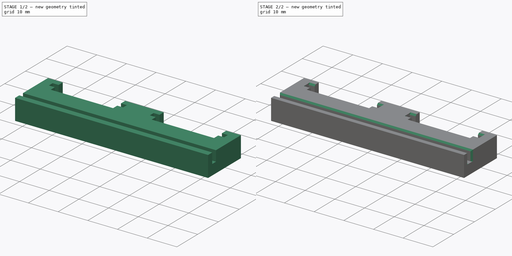
[diagram: build sequence overview — one tinted view per stage of 2, left to right]
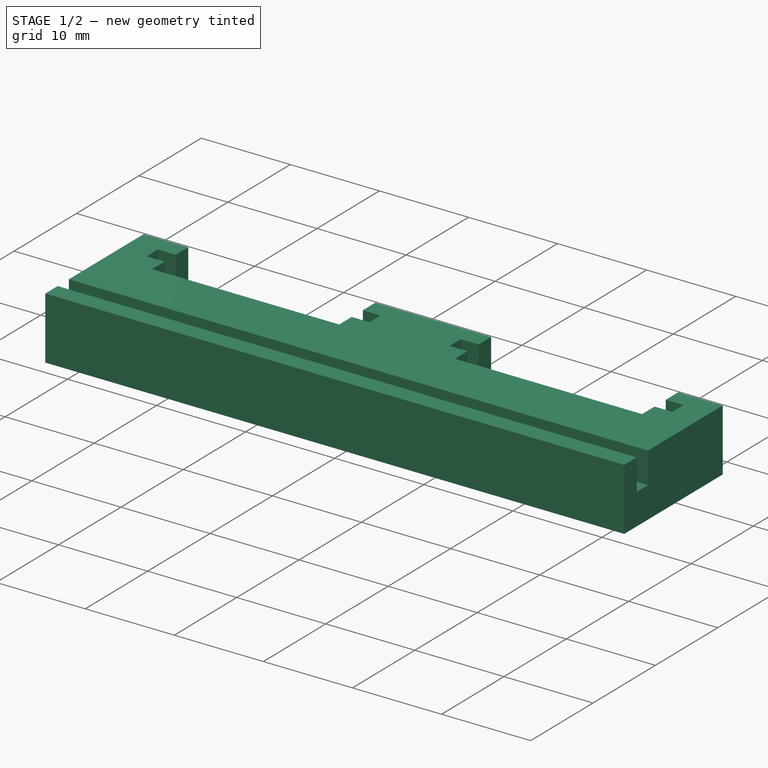
[diagram: stage 1 of 2 — iso view after this stage's code; geometry added in this stage tinted green]
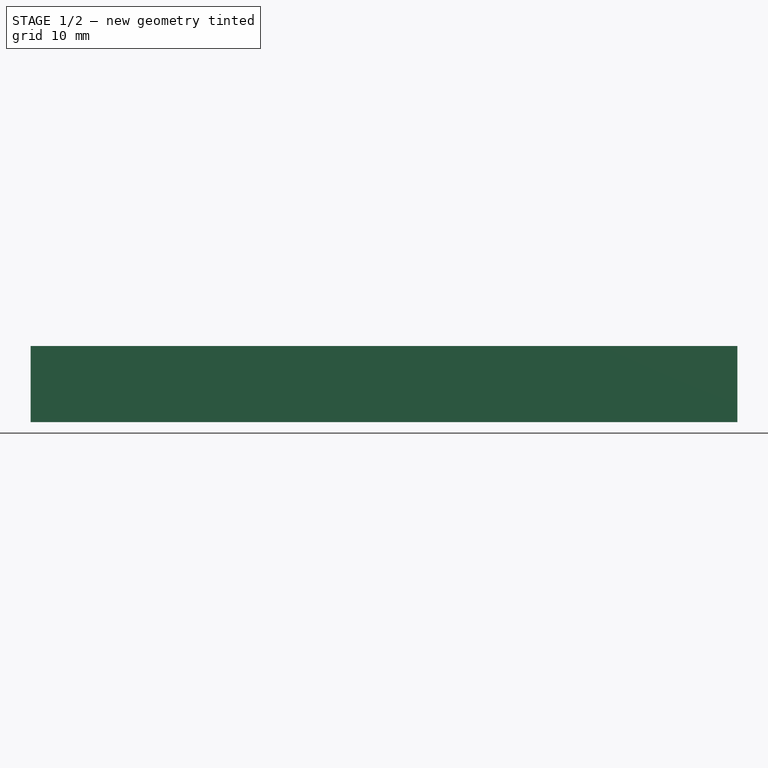
[diagram: stage 1 of 2 — front view after this stage's code; geometry added in this stage tinted green]
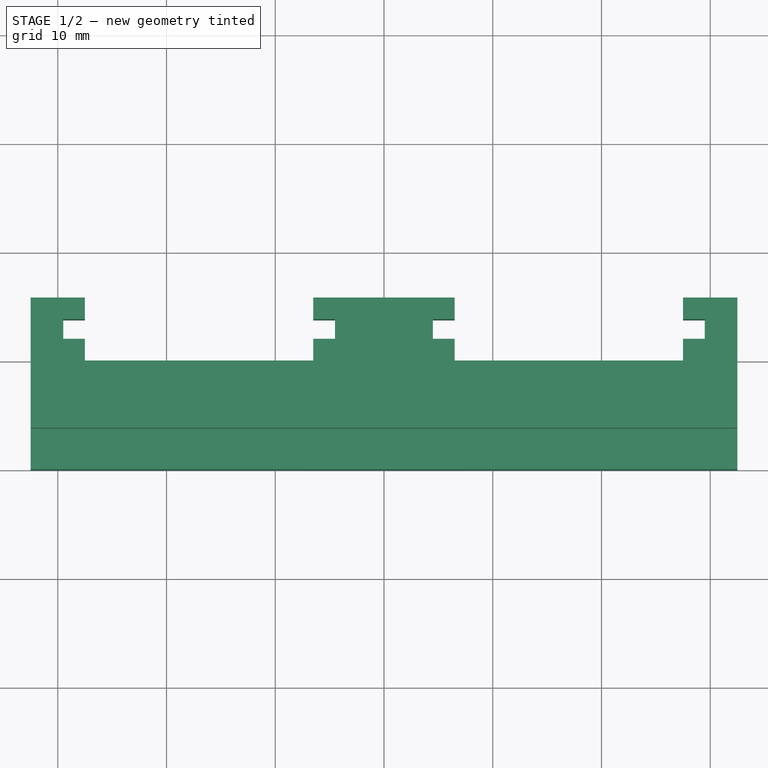
[diagram: stage 1 of 2 — top view after this stage's code; geometry added in this stage tinted green]
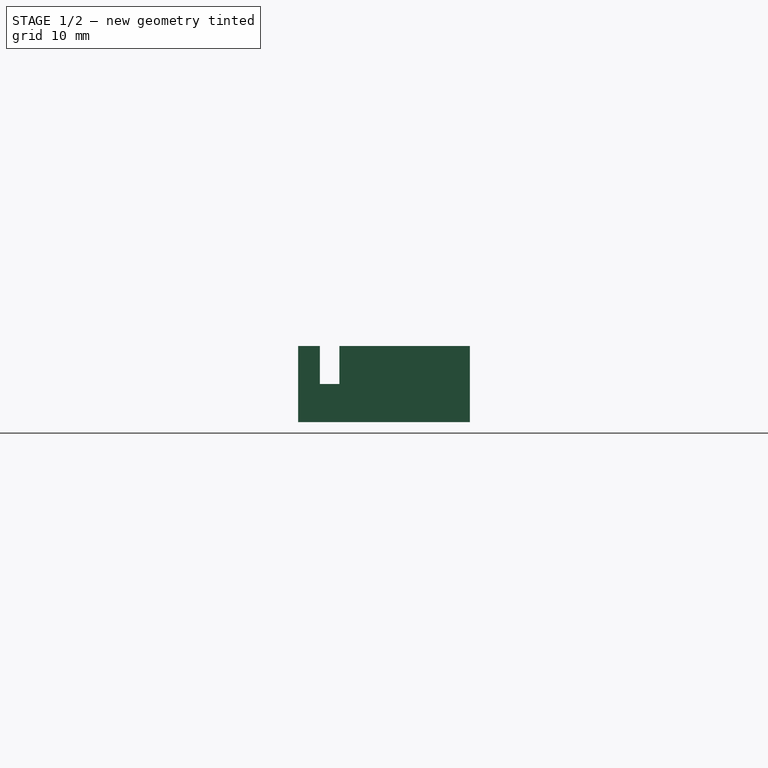
[diagram: stage 1 of 2 — right view after this stage's code; geometry added in this stage tinted green]
FCSTD DOCUMENT  (FreeCAD 0.19R24291 (Git))
Label: 20211204-gigatron-dual-sd-v2
License: All rights reserved
LicenseURL: http://en.wikipedia.org/wiki/All_rights_reserved
objects: Sketcher::SketchObject×2, PartDesign::Chamfer×2, PartDesign::Pad×1, PartDesign::Pocket×1, Spreadsheet::Sheet×1, PartDesign::Body×1
note: 11 computed .brp shape members not serialized (recipe doc carries the construction recipe); baked Part::Feature solids carry a one-line shape summary decoded from their .brp

FEATURE [Sketcher::SketchObject] Sketch
  FullyConstrained = true
  MapMode = 5
  Support = -> [XY_Plane]
  expr: Constraints[80] = Spreadsheet.sd_slot + Spreadsheet.edge
  expr: Constraints[66] = Spreadsheet.up_thick
  expr: Constraints[82] = Spreadsheet.bottom_edge + Spreadsheet.sd_distance
  expr: Constraints[68] = Spreadsheet.down_thick
  expr: Constraints[67] = Spreadsheet.pcb + 2 * Spreadsheet.vspace
  expr: Constraints[75] = Spreadsheet.sd_slot
  expr: Constraints[78] = Spreadsheet.sd_wide + 2 * Spreadsheet.hspace
  expr: Constraints[77] = Spreadsheet.sd_wide + 2 * Spreadsheet.hspace
  expr: Constraints[76] = Spreadsheet.sd_distance - 2 * Spreadsheet.hspace
  sketch-geometry (28):
    g0: LineSegment StartX=-32.5 StartY=0 StartZ=0 EndX=-32.5 EndY=15.8 EndZ=0
    g1: LineSegment StartX=-32.5 StartY=15.8 StartZ=0 EndX=-27.5 EndY=15.8 EndZ=0
    g2: LineSegment StartX=-27.5 StartY=15.8 StartZ=0 EndX=-27.5 EndY=13.8 EndZ=0
    g3: LineSegment StartX=-27.5 StartY=13.8 StartZ=0 EndX=-29.5 EndY=13.8 EndZ=0
    g4: LineSegment StartX=-29.5 StartY=13.8 StartZ=0 EndX=-29.5 EndY=12 EndZ=0
    g5: LineSegment StartX=-29.5 StartY=12 StartZ=0 EndX=-27.5 EndY=12 EndZ=0
    g6: LineSegment StartX=-27.5 StartY=12 StartZ=0 EndX=-27.5 EndY=10 EndZ=0
    g7: LineSegment StartX=-27.5 StartY=10 StartZ=0 EndX=-6.5 EndY=10 EndZ=0
    g8: LineSegment StartX=-6.5 StartY=10 StartZ=0 EndX=-6.5 EndY=12 EndZ=0
    g9: LineSegment StartX=-6.5 StartY=12 StartZ=0 EndX=-4.5 EndY=12 EndZ=0
    g10: LineSegment StartX=-4.5 StartY=12 StartZ=0 EndX=-4.5 EndY=13.8 EndZ=0
    g11: LineSegment StartX=-4.5 StartY=13.8 StartZ=0 EndX=-6.5 EndY=13.8 EndZ=0
    g12: LineSegment StartX=-6.5 StartY=13.8 StartZ=0 EndX=-6.5 EndY=15.8 EndZ=0
    g13: LineSegment StartX=-6.5 StartY=15.8 StartZ=0 EndX=6.5 EndY=15.8 EndZ=0
    g14: LineSegment StartX=6.5 StartY=15.8 StartZ=0 EndX=6.5 EndY=13.8 EndZ=0
    g15: LineSegment StartX=6.5 StartY=13.8 StartZ=0 EndX=4.5 EndY=13.8 EndZ=0
    g16: LineSegment StartX=4.5 StartY=13.8 StartZ=0 EndX=4.5 EndY=12 EndZ=0
    g17: LineSegment StartX=4.5 StartY=12 StartZ=0 EndX=6.5 EndY=12 EndZ=0
    g18: LineSegment StartX=6.5 StartY=12 StartZ=0 EndX=6.5 EndY=10 EndZ=0
    g19: LineSegment StartX=6.5 StartY=10 StartZ=0 EndX=27.5 EndY=10 EndZ=0
    g20: LineSegment StartX=27.5 StartY=10 StartZ=0 EndX=27.5 EndY=12 EndZ=0
    g21: LineSegment StartX=27.5 StartY=12 StartZ=0 EndX=29.5 EndY=12 EndZ=0
    g22: LineSegment StartX=29.5 StartY=12 StartZ=0 EndX=29.5 EndY=13.8 EndZ=0
    g23: LineSegment StartX=29.5 StartY=13.8 StartZ=0 EndX=27.5 EndY=13.8 EndZ=0
    g24: LineSegment StartX=27.5 StartY=13.8 StartZ=0 EndX=27.5 EndY=15.8 EndZ=0
    g25: LineSegment StartX=27.5 StartY=15.8 StartZ=0 EndX=32.5 EndY=15.8 EndZ=0
    g26: LineSegment StartX=32.5 StartY=15.8 StartZ=0 EndX=32.5 EndY=6.7608e-12 EndZ=0
    g27: LineSegment StartX=32.5 StartY=6.7608e-12 StartZ=0 EndX=-32.5 EndY=0 EndZ=0
  constraints (83):
    c: PointOnObject(g0,g-1)
    c: Vertical(g0)
    c: Coincident(g0,g1)
    c: Horizontal(g1)
    c: Coincident(g1,g2)
    c: Vertical(g2)
    c: Coincident(g2,g3)
    c: Horizontal(g3)
    c: Coincident(g3,g4)
    c: Coincident(g4,g5)
    c: Coincident(g5,g6)
    c: Vertical(g6)
    c: Coincident(g6,g7)
    c: Horizontal(g7)
    c: Coincident(g7,g8)
    c: Coincident(g8,g9)
    c: Coincident(g9,g10)
    c: Coincident(g10,g11)
    c: Coincident(g11,g12)
    c: Coincident(g12,g13)
    c: Horizontal(g13)
    c: Coincident(g13,g14)
    c: Coincident(g14,g15)
    c: Coincident(g15,g16)
    c: Coincident(g16,g17)
    c: Coincident(g17,g18)
    c: Coincident(g18,g19)
    c: Horizontal(g19)
    c: Coincident(g19,g20)
    c: Vertical(g20)
    c: Coincident(g20,g21)
    c: Coincident(g21,g22)
    c: Vertical(g22)
    c: Coincident(g22,g23)
    c: Coincident(g23,g24)
    c: Coincident(g24,g25)
    c: Horizontal(g25)
    c: Coincident(g25,g26)
    c: Vertical(g26)
    c: Coincident(g26,g27)
    c: Coincident(g27,g0)
    c: Horizontal(g5)
    c: Horizontal(g11)
    c: Horizontal(g9)
    c: Horizontal(g17)
    c: Horizontal(g15)
    c: Horizontal(g21)
    c: Horizontal(g23)
    c: Vertical(g4)
    c: Vertical(g10)
    c: Vertical(g12)
    c: Vertical(g8)
    c: Vertical(g24)
    c: Vertical(g14)
    c: Vertical(g18)
    c: Vertical(g16)
    c: Equal(g3,g5)
    c: Equal(g5,g11)
    c: Equal(g11,g9)
    c: Equal(g9,g15)
    c: Equal(g15,g17)
    c: Equal(g17,g23)
    c: Equal(g21,g23)
    c: Equal(g2,g12)
    c: Equal(g12,g14)
    c: Equal(g14,g24)
    c: DistanceY(g24,g24) = 2
    c: DistanceY(g22,g22) = 1.8
    c: DistanceY(g20,g20) = 2
    c: Equal(g18,g8)
    c: Equal(g20,g18)
    c: Equal(g8,g6)
    c: Equal(g22,g16)
    c: Equal(g16,g10)
    c: Equal(g10,g4)
    c: DistanceX(g15,g15) = 2
    c: DistanceX(g10,g15) = 9
    c: DistanceX(g3,g10) = 25
    c: DistanceX(g16,g21) = 25
    c: Equal(g1,g25)
    c: DistanceX(g1,g1) = 5
    c: Symmetric(g0,g26,g-1)
    c: DistanceY(g0,g4) = 12
FEATURE [PartDesign::Pad] Pad
  Direction = (1,1,1)
  Length = 7
  Length2 = 100
  Profile = -> Sketch
  Type = 0
FEATURE [Sketcher::SketchObject] Sketch001
  AttachmentOffset = pos=(0,0,7) rot=(0,0,1;0rad)
  FullyConstrained = true
  MapMode = 5
  Placement = pos=(0,0,7) rot=(0,0,1;0rad)
  Support = -> [XY_Plane]
  expr: Constraints[10] = 2 * (Spreadsheet.sd_wide + 2 * Spreadsheet.hspace + Spreadsheet.edge) + Spreadsheet.sd_distance - 2 * Spreadsheet.hspace
  expr: Constraints[8] = Spreadsheet.bottom_edge
  expr: .AttachmentOffset.Base.z = Spreadsheet.pcbthick + Spreadsheet.backthick
  expr: Constraints[7] = Spreadsheet.pcb + 2 * Spreadsheet.vspace
  sketch-geometry (4):
    g0: LineSegment StartX=-32.5 StartY=3.8 StartZ=0 EndX=32.5 EndY=3.8 EndZ=0
    g1: LineSegment StartX=32.5 StartY=3.8 StartZ=0 EndX=32.5 EndY=2 EndZ=0
    g2: LineSegment StartX=32.5 StartY=2 StartZ=0 EndX=-32.5 EndY=2 EndZ=0
    g3: LineSegment StartX=-32.5 StartY=2 StartZ=0 EndX=-32.5 EndY=3.8 EndZ=0
  constraints (11):
    c: Coincident(g0,g1)
    c: Coincident(g1,g2)
    c: Coincident(g2,g3)
    c: Coincident(g3,g0)
    c: Horizontal(g0)
    c: Vertical(g1)
    c: Vertical(g3)
    c: DistanceY(g3,g3) = 1.8
    c: DistanceY(g-1,g1) = 2
    c: Symmetric(g2,g1,g-2)
    c: DistanceX(g0,g0) = 65
FEATURE [PartDesign::Pocket] Pocket
  BaseFeature = -> Pad
  Length = 3.5
  Length2 = 100
  Profile = -> Sketch001
  Type = 0
  expr: Length = Spreadsheet.pcbthick
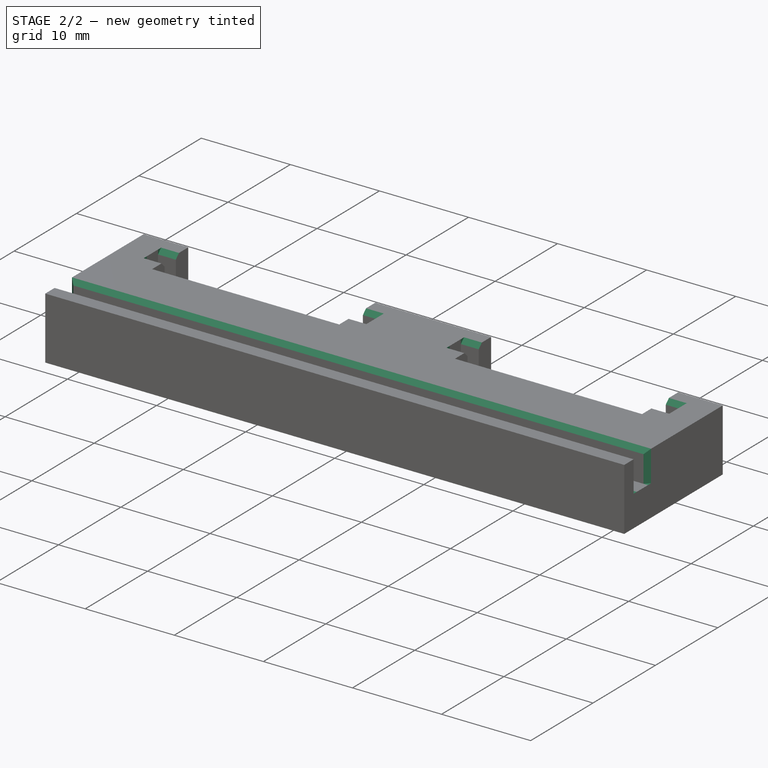
[diagram: stage 2 of 2 — iso view after this stage's code; geometry added in this stage tinted green]
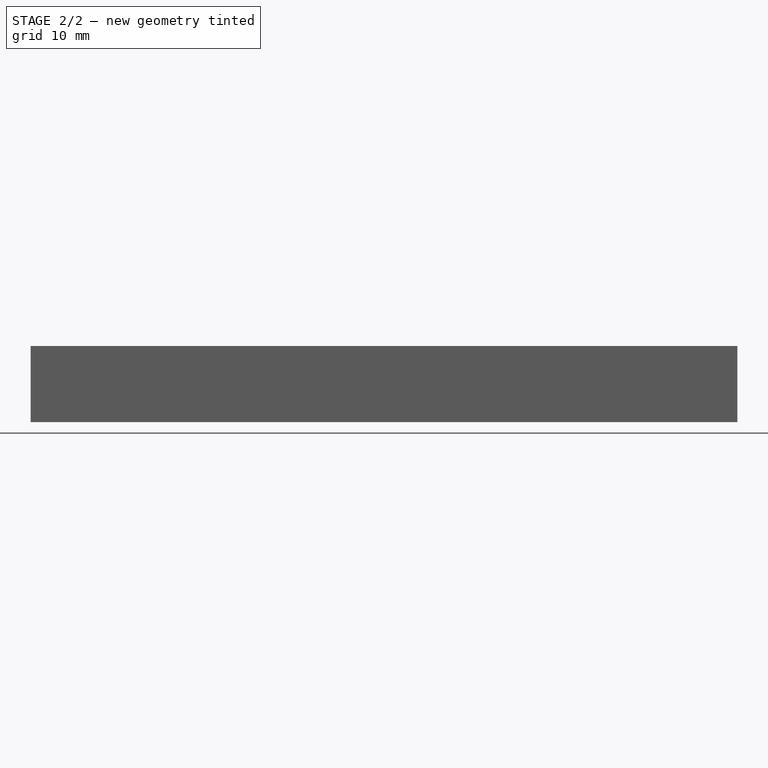
[diagram: stage 2 of 2 — front view after this stage's code; geometry added in this stage tinted green]
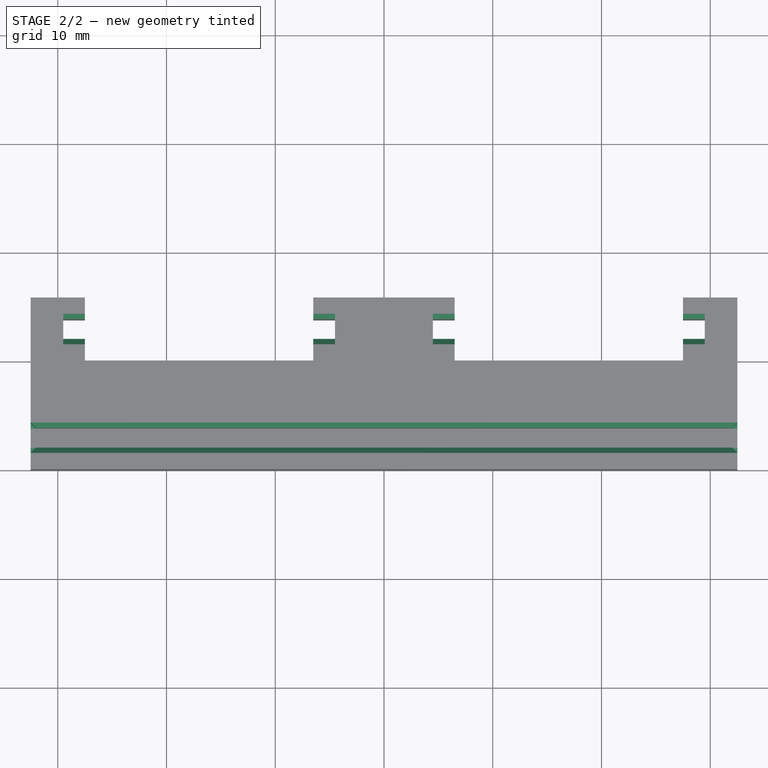
[diagram: stage 2 of 2 — top view after this stage's code; geometry added in this stage tinted green]
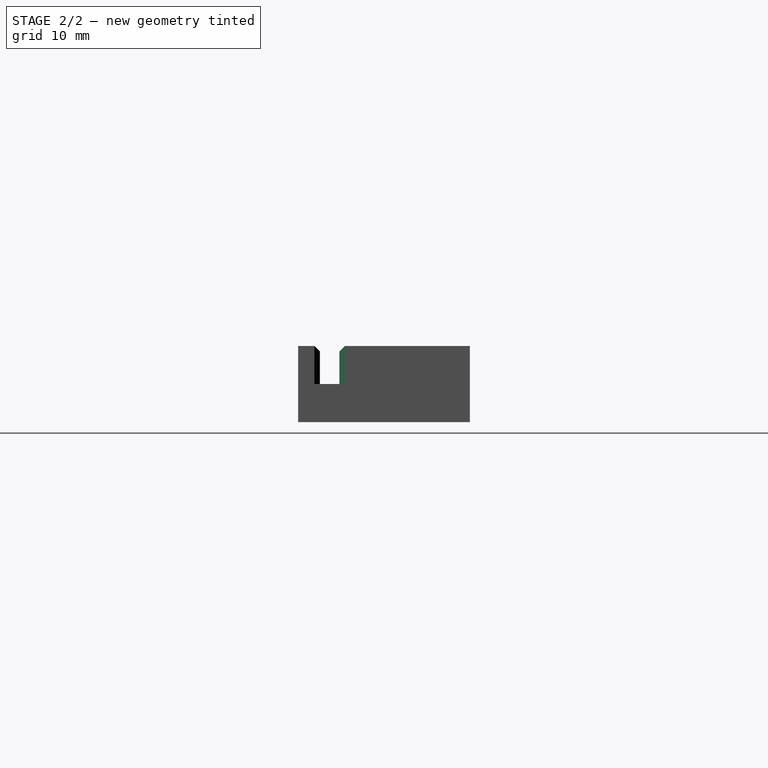
[diagram: stage 2 of 2 — right view after this stage's code; geometry added in this stage tinted green]
FEATURE [Spreadsheet::Sheet] Spreadsheet
  cells = A2=PCB Dicke; B2(pcb)==1.6mm; A3=Freiraum Vertical; B3(vspace)==0.1mm; A4=Distanz SD-Card; B4(distance)==9mm; A5=Freiraum Horizontal; B5(hspace)==0.5mm; A6=Stärke Rückwand; B6(backthick)==3.5mm; A7=Stärke im PCB; B7(pcbthick)==3.5mm; A8=SD-Card Abstand; B8(sd_distance)==10mm; A9=SD-Card Breite; B9(sd_wide)==24mm; A10=Seitenrand; B10(edge)==3mm; B11(sd_slot)==2mm; B12(up_thick)==2mm; B13(down_thick)==2mm; B14(bottom_edge)==2mm
FEATURE [PartDesign::Chamfer] Chamfer
  Angle = 45
  Base = -> Pocket [Edge69,Edge38,Edge6,Edge4,Edge68,Edge64]
  BaseFeature = -> Pocket
  ChamferType = 0
  FlipDirection = false
  Size = 0.5
  Size2 = 1
  SupportTransform = false
FEATURE [PartDesign::Chamfer] Chamfer001
  Angle = 45
  Base = -> Chamfer [Edge23,Edge19,Edge31,Edge35,Edge28,Edge32,Edge20,Edge16]
  BaseFeature = -> Chamfer
  ChamferType = 0
  FlipDirection = false
  Size = 0.5
  Size2 = 1
  SupportTransform = false
FEATURE [PartDesign::Body] Body
  Group = -> [Sketch,Pad,Sketch001,Pocket,Chamfer,Chamfer001]
  Origin = -> Origin
  Tip = -> Chamfer001
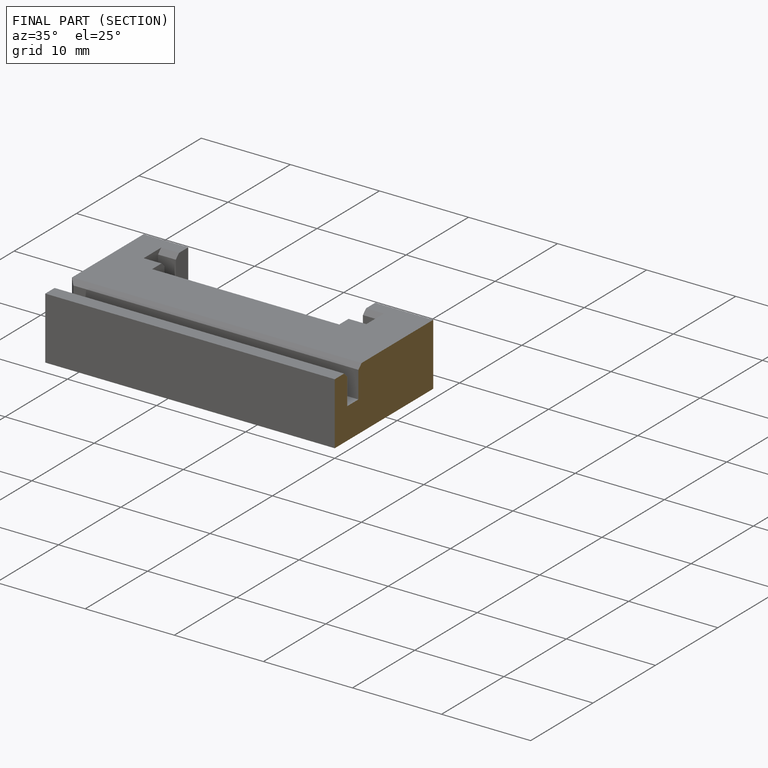
[diagram: finished part — half-section view (interior)]
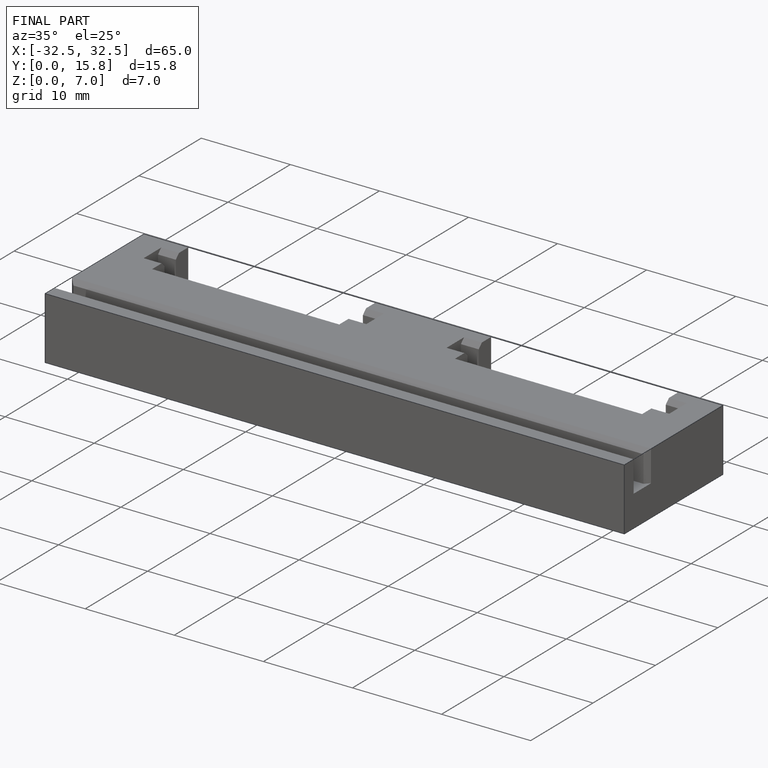
[diagram: finished part — iso view with bounding-box wireframe]
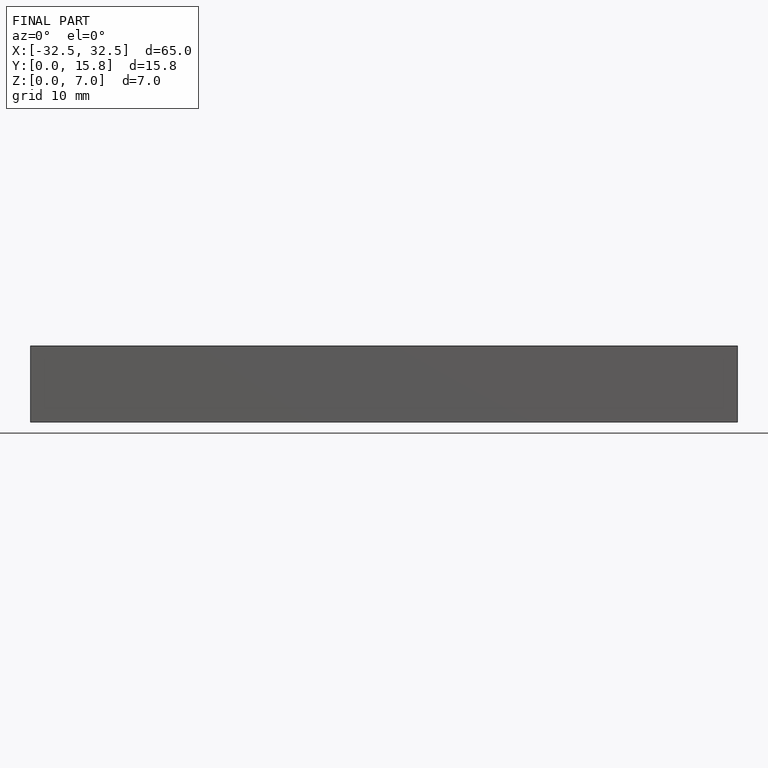
[diagram: finished part — front view with bounding-box wireframe]
